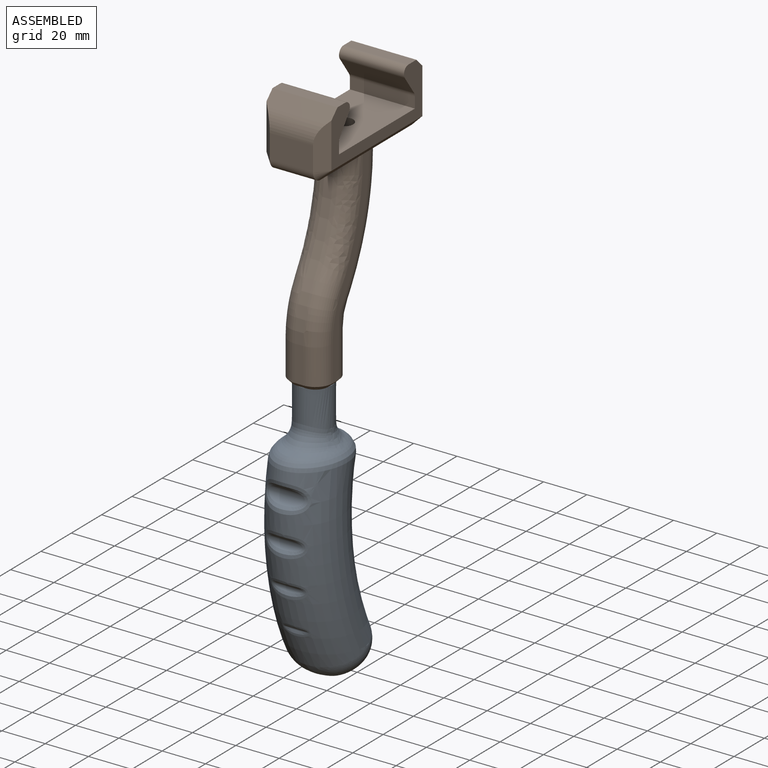
[diagram: assembled view]
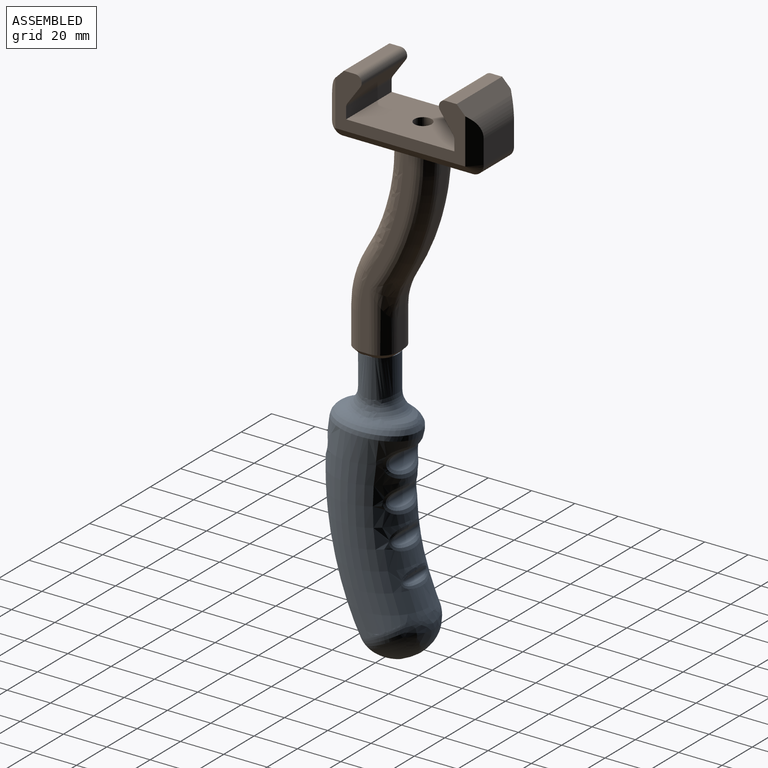
[diagram: assembled view, second angle]
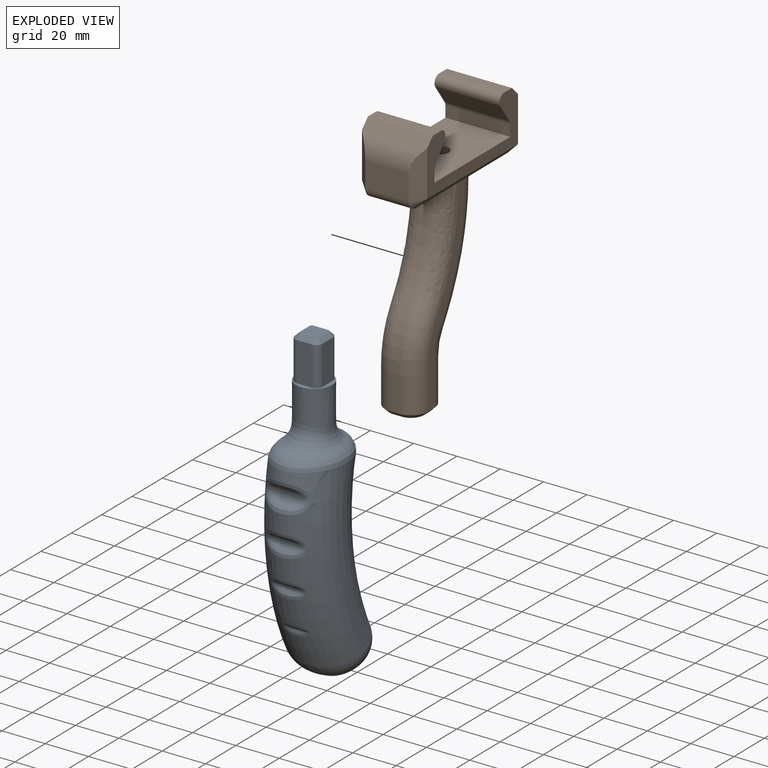
[diagram: exploded view]
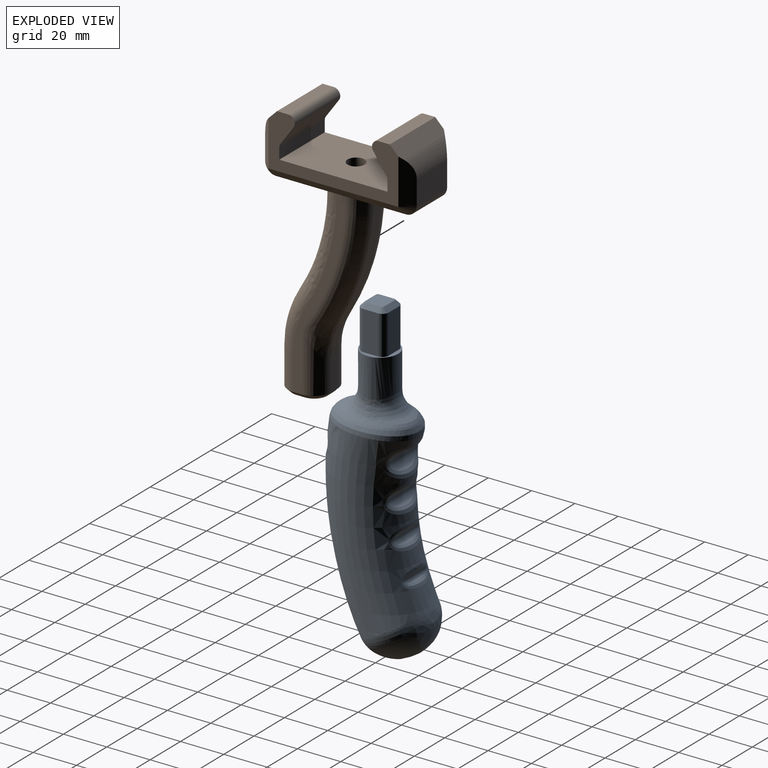
[diagram: exploded view, second angle]
ASSEMBLY  parts=2 mates=3
PART A: 50 faces, bbox 55x35.4x145 mm
  f0: bspline ~4.84x3.54mm, area 0mm2, adj f35,f47
  f1: plane 18x6.75mm, normal (0,1,0), area 121.5mm2, adj f2,f8,f11,f36
  f2: cylinder r=3mm len=18mm, axis (0,0,1), area 84.8mm2, adj f1,f3,f13,f36
  f3: plane 18x6.75mm, normal (-1,0,0), area 121.5mm2, adj f2,f4,f15,f36
  f4: cylinder r=3mm len=18mm, axis (0,0,1), area 84.8mm2, adj f3,f5,f17,f36
  f5: plane 18x6.75mm, normal (0,-1,0), area 121.5mm2, adj f4,f6,f16,f36
  f6: cylinder r=3mm len=18mm, axis (0,0,1), area 84.8mm2, adj f5,f7,f14,f36
  f7: plane 18x6.75mm, normal (1,0,0), area 121.5mm2, adj f6,f8,f12,f36
  f8: cylinder r=3mm len=18mm, axis (0,0,1), area 84.8mm2, adj f1,f7,f10,f36
  f9: plane 8.75x8.75mm, normal (0,0,-1), area 75.7mm2, adj f10,f11,f12,f13,f14,f15,f16,f17
  f10: cone r=3mm half-angle=45deg, axis (0,0,1), area 8.9mm2, adj f8,f9,f11,f12
  f11: plane 6.75x2mm, normal (0,0.71,-0.71), area 19.1mm2, adj f1,f9,f10,f13
  f12: plane 6.75x2mm, normal (0.71,0,-0.71), area 19.1mm2, adj f7,f9,f10,f14
  f13: cone r=3mm half-angle=45deg, axis (0,0,1), area 8.9mm2, adj f2,f9,f11,f15
  f14: cone r=3mm half-angle=45deg, axis (0,0,1), area 8.9mm2, adj f6,f9,f12,f16
  f15: plane 6.75x2mm, normal (-0.71,0,-0.71), area 19.1mm2, adj f3,f9,f13,f17
  f16: plane 6.75x2mm, normal (0,-0.71,-0.71), area 19.1mm2, adj f5,f9,f14,f17
  f17: cone r=3mm half-angle=45deg, axis (0,0,1), area 8.9mm2, adj f4,f9,f15,f16
  f18: plane 3.8x0.95mm, normal (0,0,1), area 2.5mm2, adj f24,f25
  f19: bspline ~86.82x52.42mm, area 7145.9mm2, adj f22,f23,f24,f25,f26,f38,f39,f40
  f20: bspline ~36.18x27.34mm, area 103.2mm2, adj f21,f22
  f21: bspline ~34.65x25.74mm, area 136.5mm2, adj f20,f46,f47,f48,f49
  f22: bspline ~39.26x30.34mm, area 421.1mm2, adj f19,f20
  f23: bspline ~23.33x20.23mm, area 410.9mm2, adj f19,f24,f25
  f24: bspline ~17.93x13.61mm, area 177.4mm2, adj f18,f19,f23,f26
  f25: bspline ~33.07x24.11mm, area 528.1mm2, adj f18,f19,f23,f26
  f26: bspline ~23.36x20.24mm, area 411.7mm2, adj f19,f24,f25
  f27: cylinder r=2mm len=14.08mm, axis (0,-1,0), area 40.4mm2, adj f45
  f28: cylinder r=3mm len=15.74mm, axis (0,-1,0), area 76.5mm2, adj f44
  f29: cylinder r=4mm len=16.58mm, axis (0,-1,0), area 115mm2, adj f43
  f30: cylinder r=5mm len=18.4mm, axis (0,-1,0), area 179.4mm2, adj f42
  f31: cylinder r=4mm len=17.71mm, axis (0,-1,0), area 129.5mm2, adj f41
  f32: cylinder r=3mm len=16.54mm, axis (0,-1,0), area 83.8mm2, adj f40
  f33: cylinder r=2mm len=14.61mm, axis (0,-1,0), area 43.4mm2, adj f39
  f34: cylinder r=1mm len=10.88mm, axis (0,-1,0), area 12.2mm2, adj f38
  f35: extruded ~17.93x16.75mm, area 912.4mm2, adj f0,f36,f37,f46,f49
  f36: plane 16.75x16.75mm, normal (0,0,-1), area 65.5mm2, adj f1,f2,f3,f4,f5,f6,f7,f8
  f37: bspline ~5.09x3.54mm, area 0mm2, adj f35,f48
  f38: bspline ~13.03x5.02mm, area 47.3mm2, adj f19,f34
  f39: bspline ~17.67x7.58mm, area 84.9mm2, adj f19,f33
  f40: bspline ~20.34x10.16mm, area 118.6mm2, adj f19,f32
  f41: bspline ~22.09x12.47mm, area 150.4mm2, adj f19,f31
  f42: bspline ~23.23x14.36mm, area 181.5mm2, adj f19,f30
  f43: bspline ~21.06x12.76mm, area 150.1mm2, adj f19,f29
  f44: bspline ~19.65x10.47mm, area 119.3mm2, adj f19,f28
  f45: bspline ~17.24x7.89mm, area 85.8mm2, adj f19,f27
  f46: bspline ~24.77x17.35mm, area 346.6mm2, adj f21,f35,f47,f48
  f47: bspline ~8.6x8.13mm, area 43.4mm2, adj f0,f21,f46,f49
  f48: bspline ~8.11x7.74mm, area 43.3mm2, adj f21,f37,f46,f49
  f49: bspline ~24.14x13.53mm, area 265.1mm2, adj f21,f35,f47,f48
PART B: 84 faces, bbox 33.8x73.8x123.8 mm
  f0: plane 94x29.49mm, normal (1,0,0), area 661.1mm2, adj f23,f24,f29,f30,f33,f77,f78
  f1: plane 94x29.49mm, normal (-1,0,0), area 661mm2, adj f22,f26,f28,f32,f33,f77,f80
  f2: plane 28.26x20.26mm, normal (0,0,-1), area 427.5mm2, adj f43,f44,f45,f46,f64,f69
  f3: plane 88.01x24.01mm, normal (-1,0,0), area 356.2mm2, adj f34,f39,f40,f45,f48,f57,f64
  f4: plane 88.01x24.01mm, normal (1,0,0), area 356.2mm2, adj f36,f38,f42,f44,f50,f58,f69
  f5: plane 20x11.03mm, normal (0,-1,0), area 220.6mm2, adj f46,f62,f67,f75
  f6: plane 28x20mm, normal (0,0,-1), area 427.5mm2, adj f40,f41,f42,f47,f64,f69
  f7: plane 20x11.03mm, normal (0,1,0), area 220.6mm2, adj f47,f66,f71,f74
  f8: plane 30x5.17mm, normal (0,0,1), area 155.1mm2, adj f9,f19,f20,f73
  f9: cylinder r=3mm len=30mm, axis (-1,0,0), area 197.2mm2, adj f8,f10,f19,f20
  f10: plane 30x8.47mm, normal (0,-0.81,-0.58), area 312.4mm2, adj f9,f11,f19,f20
  f11: cylinder r=3mm len=30mm, axis (-1,0,0), area 55.8mm2, adj f10,f12,f19,f20
  f12: plane 30x5.04mm, normal (0,-1,0), area 151.2mm2, adj f11,f13,f19,f20
  f13: plane 50x30mm, normal (0,0,1), area 1449.7mm2, adj f12,f14,f19,f20,f76
  f14: plane 30x5.04mm, normal (0,1,0), area 151.2mm2, adj f13,f15,f19,f20
  f15: cylinder r=3mm len=30mm, axis (-1,0,0), area 55.8mm2, adj f14,f16,f19,f20
  f16: plane 30x8.47mm, normal (0,0.81,-0.58), area 312.4mm2, adj f15,f17,f19,f20
  f17: cylinder r=3mm len=30mm, axis (-1,0,0), area 197.2mm2, adj f16,f18,f19,f20
  f18: plane 30x5.17mm, normal (0,0,1), area 155.1mm2, adj f17,f19,f20,f72
  f19: plane 60x25mm, normal (1,0,0), area 608.9mm2, adj f8,f9,f10,f11,f12,f13,f14,f15
  f20: plane 60x25mm, normal (-1,0,0), area 608.9mm2, adj f8,f9,f10,f11,f12,f13,f14,f15
  f21: plane 22.03x7mm, normal (0,1,0), area 154.2mm2, adj f22,f23,f33,f79
  f22: cylinder r=3mm len=22.03mm, axis (0,0,-1), area 103.8mm2, adj f1,f21,f33,f80
  f23: cylinder r=3mm len=22.03mm, axis (0,0,-1), area 103.8mm2, adj f0,f21,f33,f78
  f24: cylinder r=3mm len=28.84mm, axis (0,0,-1), area 116.4mm2, adj f0,f25,f33,f83
  f25: plane 20.57x7mm, normal (0,-1,0), area 144mm2, adj f24,f26,f33,f82
  f26: cylinder r=3mm len=28.84mm, axis (0,0,-1), area 116.4mm2, adj f1,f25,f33,f81
  f27: bspline ~55.48x16.86mm, area 378.9mm2, adj f28,f29,f77,f79
  f28: bspline ~52.9x17.9mm, area 256.3mm2, adj f1,f27,f77,f80
  f29: bspline ~52.9x17.9mm, area 256.3mm2, adj f0,f27,f77,f78
  f30: torus R=103.5mm, axis (-1,0,0), area 297.4mm2, adj f0,f31,f77,f83
  f31: cylinder r=106.5mm len=58.17mm, axis (-1,0,0), area 425.7mm2, adj f30,f32,f77,f82
  f32: torus R=103.5mm, axis (-1,0,0), area 297.4mm2, adj f1,f31,f77,f81
  f33: plane 16x16mm, normal (0,0,-1), area 63.8mm2, adj f0,f1,f21,f22,f23,f24,f25,f26
  f34: cylinder r=8mm len=27.34mm, axis (0,0,-1), area 236.6mm2, adj f3,f35,f53,f59
  f35: plane 14.24x4mm, normal (0,1,0), area 57mm2, adj f34,f36,f52,f61
  f36: cylinder r=8mm len=27.34mm, axis (0,0,-1), area 236.6mm2, adj f4,f35,f51,f60
  f37: plane 16.45x4mm, normal (0,-1,0), area 65.8mm2, adj f38,f39,f49,f54
  f38: cylinder r=8mm len=16.45mm, axis (0,0,-1), area 206.7mm2, adj f4,f37,f50,f56
  f39: cylinder r=8mm len=16.45mm, axis (0,0,-1), area 206.7mm2, adj f3,f37,f48,f55
  f40: torus R=102mm, axis (-1,0,0), area 758.8mm2, adj f3,f6,f41,f53
  f41: cylinder r=110mm len=55.57mm, axis (-1,0,0), area 233mm2, adj f6,f40,f42,f52
  f42: torus R=102mm, axis (-1,0,0), area 758.9mm2, adj f4,f6,f41,f51
  f43: bspline ~49.06x14.54mm, area 196.2mm2, adj f2,f44,f45,f49
  f44: bspline ~53.42x22.54mm, area 636.4mm2, adj f2,f4,f43,f50
  f45: bspline ~53.42x22.54mm, area 636.4mm2, adj f2,f3,f43,f48
  f46: cylinder r=5mm len=20mm, axis (-1,0,0), area 157.1mm2, adj f2,f5,f63,f68
  f47: cylinder r=5mm len=20mm, axis (1,0,0), area 157.1mm2, adj f6,f7,f65,f70
  f48: torus R=40mm, axis (-1,0,0), area 308.9mm2, adj f3,f39,f45,f49
  f49: cylinder r=48mm len=24.89mm, axis (-1,0,0), area 104.7mm2, adj f37,f43,f48,f50
  f50: torus R=40mm, axis (1,0,0), area 308.9mm2, adj f4,f38,f44,f49
  f51: bspline ~18.19x12.94mm, area 166.7mm2, adj f36,f42,f52
  f52: cylinder r=36mm len=18.19mm, axis (-1,0,0), area 76.3mm2, adj f35,f41,f51,f53
  f53: bspline ~18.19x12.94mm, area 166.7mm2, adj f34,f40,f52
  f54: plane 4x2mm, normal (0,-0.71,-0.71), area 11.3mm2, adj f33,f37,f55,f56
  f55: cone r=6mm half-angle=45deg, axis (0,0,1), area 31.1mm2, adj f33,f39,f54,f57
  f56: cone r=6mm half-angle=45deg, axis (0,0,1), area 31.1mm2, adj f33,f38,f54,f58
  f57: plane 4x2mm, normal (-0.71,0,-0.71), area 11.3mm2, adj f3,f33,f55,f59
  f58: plane 4x2mm, normal (0.71,0,-0.71), area 11.3mm2, adj f4,f33,f56,f60
  f59: cone r=6mm half-angle=45deg, axis (0,0,1), area 31.1mm2, adj f33,f34,f57,f61
  f60: cone r=6mm half-angle=45deg, axis (0,0,1), area 31.1mm2, adj f33,f36,f58,f61
  f61: plane 4x2mm, normal (0,0.71,-0.71), area 11.3mm2, adj f33,f35,f59,f60
  f62: plane 22.69x6.69mm, normal (-0.71,-0.71,0), area 126.4mm2, adj f5,f20,f63,f72,f75
  f63: cone r=5mm half-angle=45deg, axis (1,0,0), area 27.8mm2, adj f46,f62,f64
  f64: plane 60x5mm, normal (-0.71,0,-0.71), area 424.3mm2, adj f2,f3,f6,f20,f63,f65
  f65: cone r=5mm half-angle=45deg, axis (1,0,0), area 27.8mm2, adj f47,f64,f66
  f66: plane 22.69x6.69mm, normal (-0.71,0.71,0), area 126.4mm2, adj f7,f20,f65,f73,f74
  f67: plane 22.69x6.69mm, normal (0.71,-0.71,0), area 126.4mm2, adj f5,f19,f68,f72,f75
  f68: cone r=5mm half-angle=45deg, axis (-1,0,0), area 27.8mm2, adj f46,f67,f69
  f69: plane 60x5mm, normal (0.71,0,-0.71), area 424.3mm2, adj f2,f4,f6,f19,f68,f70
  f70: cone r=5mm half-angle=45deg, axis (-1,0,0), area 37mm2, adj f47,f69,f71
  f71: plane 24.83x8.83mm, normal (0.71,0.71,0), area 126.4mm2, adj f7,f19,f70,f73,f74
  f72: plane 30x5.49mm, normal (0,-0.71,0.71), area 229.6mm2, adj f18,f19,f20,f62,f67,f75
  f73: plane 30x5.49mm, normal (0,0.71,0.71), area 229.6mm2, adj f8,f19,f20,f66,f71,f74
  f74: cylinder r=12mm len=27.03mm, axis (1,0,0), area 221.6mm2, adj f7,f66,f71,f73
  f75: cylinder r=12mm len=27.03mm, axis (1,0,0), area 221.6mm2, adj f5,f62,f67,f72
  f76: cylinder r=4mm len=8mm, axis (0,0,1), area 150.8mm2, adj f13,f77
  f77: cone r=4mm half-angle=45deg, axis (0,0,-1), area 166.6mm2, adj f0,f1,f27,f28,f29,f30,f31,f32
  f78: torus R=29mm, axis (1,0,0), area 83.4mm2, adj f0,f23,f29,f79
  f79: cylinder r=32mm len=17.33mm, axis (1,0,0), area 128.2mm2, adj f21,f27,f78,f80
  f80: torus R=29mm, axis (-1,0,0), area 83.4mm2, adj f1,f22,f28,f79
  f81: bspline ~12.78x6.69mm, area 25.2mm2, adj f26,f32,f82
  f82: cylinder r=24mm len=12.77mm, axis (-1,0,0), area 94.2mm2, adj f25,f31,f81,f83
  f83: bspline ~12.79x6.69mm, area 25.2mm2, adj f24,f30,f82
PLACE A rot(axis=(-0.71,-0.71,0),180deg) t=(-4.99,-1.3,-57.96)mm
PLACE B t=(-4.87,18.58,32.04)mm
MATE planar A.f5 <-> B.f0  axis (-1,0,0) through (-11.37,-1.3,-48.96)mm
MATE planar A.f7 <-> B.f25  axis (0,1,0) through (-4.99,5.08,-48.96)mm
MATE planar A.f36 <-> B.f33  axis (0,0,1) through (-4.99,-1.3,-57.96)mm
